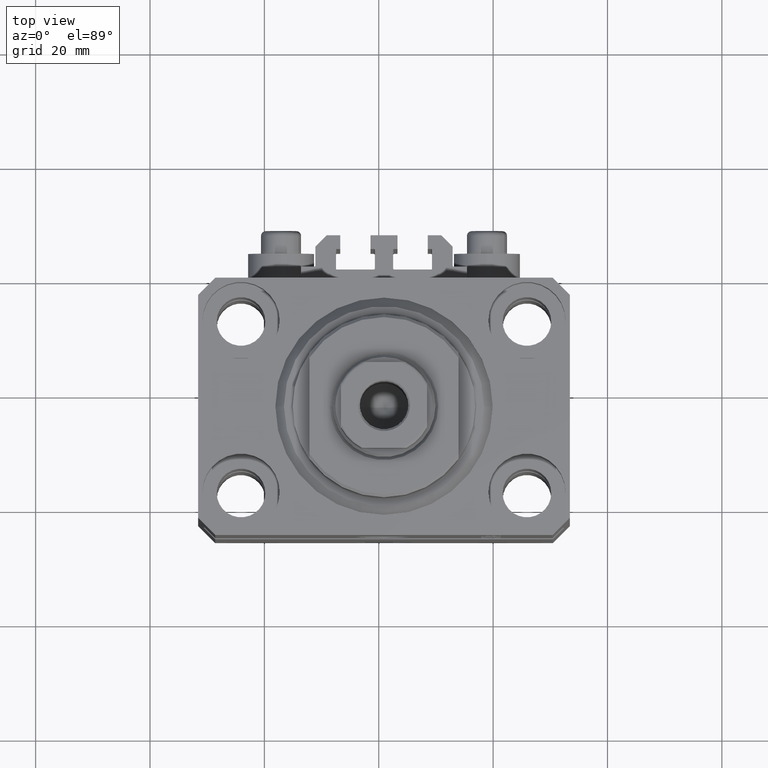
[diagram: clean part render]
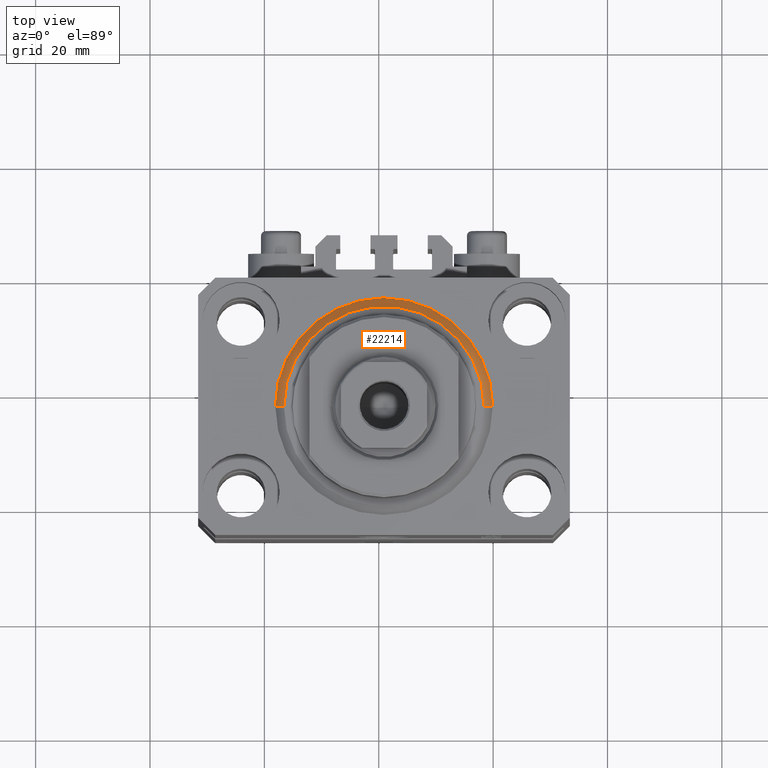
[diagram: same view with one face highlighted and labeled with its STEP entity id]
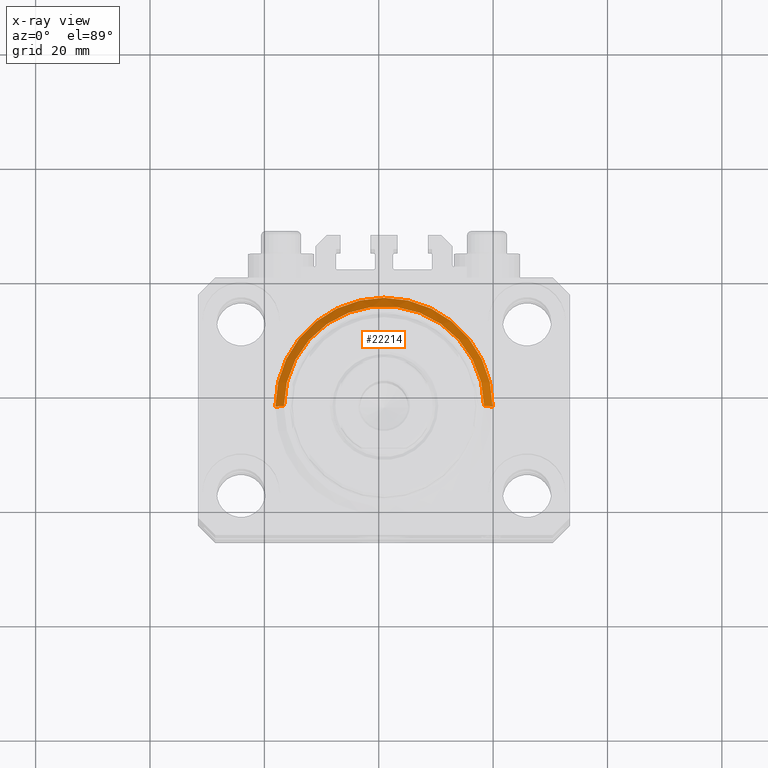
[diagram: x-ray of the same camera — body ghosted, the highlighted face saturated]
A machine part, top view. The second image highlights one B-rep face of the part: STEP entity #22214.
The next image is the same camera in x-ray: the body ghosted, the highlighted face saturated — about 0% of this face is hidden behind the body in this view.
In plain terms, the highlighted conical surface has half-angle 45 deg.
Its self-contained STEP definition (entity closure, byte-faithful):
#1405 = DIRECTION ( 'NONE',  ( -0.7071067811865483499, 8.659560562354943952E-17, 0.7071067811865467956 ) ) ;
#3107 = VERTEX_POINT ( 'NONE', #17096 ) ;
#3261 = ORIENTED_EDGE ( 'NONE', *, *, #20281, .F. ) ;
#3467 = AXIS2_PLACEMENT_3D ( 'NONE', #37385, #5174, #19481 ) ;
#3687 = CARTESIAN_POINT ( 'NONE',  ( 17.49999999999999289, 0.000000000000000000, 0.000000000000000000 ) ) ;
#5174 = DIRECTION ( 'NONE',  ( -0.000000000000000000, -0.000000000000000000, 1.000000000000000000 ) ) ;
#5849 = LINE ( 'NONE', #42348, #30057 ) ;
#6555 = EDGE_CURVE ( 'NONE', #3107, #37744, #29103, .T. ) ;
#6885 = DIRECTION ( 'NONE',  ( 1.000000000000000000, 0.000000000000000000, 0.000000000000000000 ) ) ;
#8092 = LINE ( 'NONE', #15481, #24669 ) ;
#11164 = AXIS2_PLACEMENT_3D ( 'NONE', #43163, #25698, #6885 ) ;
#13608 = EDGE_CURVE ( 'NONE', #37744, #36601, #5849, .T. ) ;
#14212 = CONICAL_SURFACE ( 'NONE', #11164, 19.00000000000000000, 0.7853981633974492782 ) ;
#14294 = FACE_OUTER_BOUND ( 'NONE', #17753, .T. ) ;
#14645 = AXIS2_PLACEMENT_3D ( 'NONE', #26416, #33807, #40973 ) ;
#15481 = CARTESIAN_POINT ( 'NONE',  ( -19.00000000000000000, 2.326828918379970970E-15, 1.500000000000004885 ) ) ;
#17096 = CARTESIAN_POINT ( 'NONE',  ( -17.49999999999999289, 2.234980408443919215E-15, 0.000000000000000000 ) ) ;
#17753 = EDGE_LOOP ( 'NONE', ( #40869, #42756, #3261, #38659 ) ) ;
#19481 = DIRECTION ( 'NONE',  ( 1.000000000000000000, 0.000000000000000000, 0.000000000000000000 ) ) ;
#20195 = CARTESIAN_POINT ( 'NONE',  ( -19.00000000000000000, 0.000000000000000000, 1.500000000000004885 ) ) ;
#20281 = EDGE_CURVE ( 'NONE', #36601, #46817, #27074, .T. ) ;
#22214 = ADVANCED_FACE ( 'NONE', ( #14294 ), #14212, .T. ) ;
#24669 = VECTOR ( 'NONE', #1405, 1000.000000000000000 ) ;
#24675 = DIRECTION ( 'NONE',  ( 0.7071067811865483499, 0.000000000000000000, 0.7071067811865467956 ) ) ;
#25698 = DIRECTION ( 'NONE',  ( -0.000000000000000000, -0.000000000000000000, 1.000000000000000000 ) ) ;
#26416 = CARTESIAN_POINT ( 'NONE',  ( 0.000000000000000000, 0.000000000000000000, 0.000000000000000000 ) ) ;
#27074 = CIRCLE ( 'NONE', #3467, 19.00000000000000000 ) ;
#29103 = CIRCLE ( 'NONE', #14645, 17.49999999999999289 ) ;
#30057 = VECTOR ( 'NONE', #24675, 1000.000000000000000 ) ;
#33807 = DIRECTION ( 'NONE',  ( -0.000000000000000000, -0.000000000000000000, -1.000000000000000000 ) ) ;
#36601 = VERTEX_POINT ( 'NONE', #42129 ) ;
#37385 = CARTESIAN_POINT ( 'NONE',  ( 0.000000000000000000, 0.000000000000000000, 1.500000000000004885 ) ) ;
#37744 = VERTEX_POINT ( 'NONE', #3687 ) ;
#38659 = ORIENTED_EDGE ( 'NONE', *, *, #13608, .F. ) ;
#40869 = ORIENTED_EDGE ( 'NONE', *, *, #6555, .F. ) ;
#40973 = DIRECTION ( 'NONE',  ( 1.000000000000000000, 0.000000000000000000, 0.000000000000000000 ) ) ;
#42129 = CARTESIAN_POINT ( 'NONE',  ( 19.00000000000000000, 2.326828918379970970E-15, 1.500000000000004885 ) ) ;
#42348 = CARTESIAN_POINT ( 'NONE',  ( 19.00000000000000000, 0.000000000000000000, 1.500000000000004885 ) ) ;
#42756 = ORIENTED_EDGE ( 'NONE', *, *, #44794, .T. ) ;
#43163 = CARTESIAN_POINT ( 'NONE',  ( 0.000000000000000000, 0.000000000000000000, 1.500000000000004885 ) ) ;
#44794 = EDGE_CURVE ( 'NONE', #3107, #46817, #8092, .T. ) ;
#46817 = VERTEX_POINT ( 'NONE', #20195 ) ;